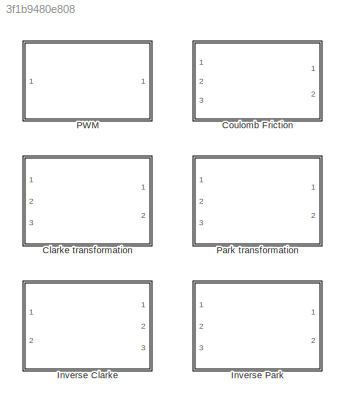
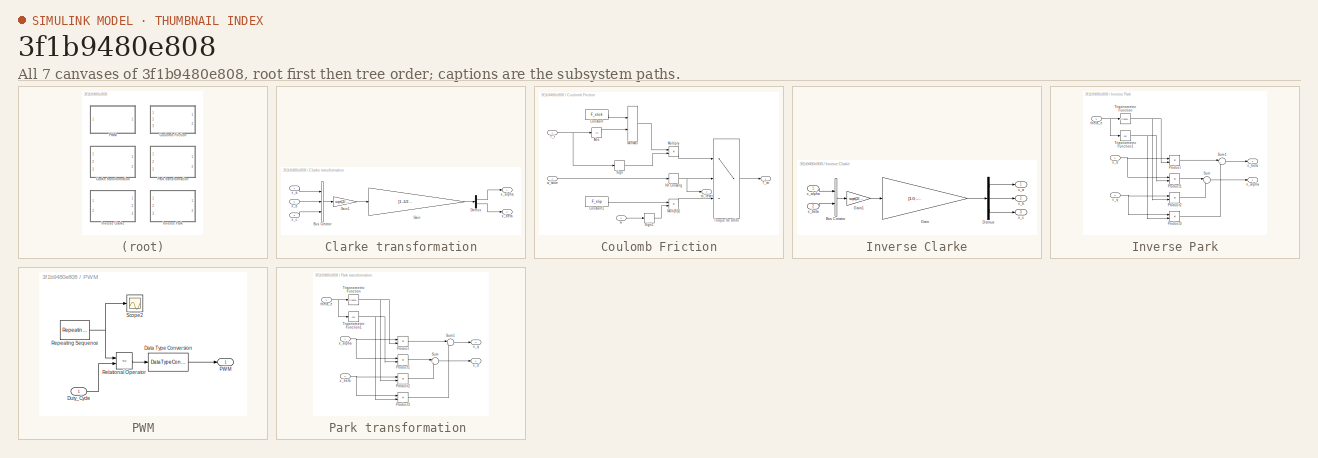
[diagram: thumbnail index - all 7 canvases of the model, root first then tree order]
MODEL slx_3f1b9480e808
KIND library
BLOCK [SubSystem] Clarke transformation
  FunctionWithSeparateData = off
  MaskHideContents = off
  MinAlgLoopOccurrences = off
  Opaque = off
  Ports = [3, 2]
  PropExecContextOutsideSubsystem = off
  RTWSystemCode = Auto
  RequestExecContextInheritance = off
BLOCK [BusCreator] Clarke transformation/Bus Creator
  DisplayOption = bar
  Inputs = 3
  Ports = [3, 1]
BLOCK [Demux] Clarke transformation/Demux
  DisplayOption = bar
  Outputs = 2
  Ports = [1, 2]
BLOCK [Gain] Clarke transformation/Gain
  Gain = [1 -1/2 -1/2 ; 0 sqrt(3)/2 -sqrt(3)/2]
  Multiplication = Matrix(K*u)
  OutDataTypeStr = Inherit: Inherit via internal rule
  ParamDataTypeStr = Inherit: Inherit via internal rule
  SaturateOnIntegerOverflow = off
BLOCK [Gain] Clarke transformation/Gain1
  Gain = sqrt(2/3)
  OutDataTypeStr = Inherit: Inherit via internal rule
  ParamDataTypeStr = Inherit: Inherit via internal rule
  SaturateOnIntegerOverflow = off
BLOCK [Inport] Clarke transformation/x_a
  IconDisplay = Port number
BLOCK [Outport] Clarke transformation/x_alpha
  IconDisplay = Port number
BLOCK [Inport] Clarke transformation/x_b
  IconDisplay = Port number
  Port = 2
BLOCK [Outport] Clarke transformation/x_beta
  IconDisplay = Port number
  Port = 2
BLOCK [Inport] Clarke transformation/x_c
  IconDisplay = Port number
  Port = 3
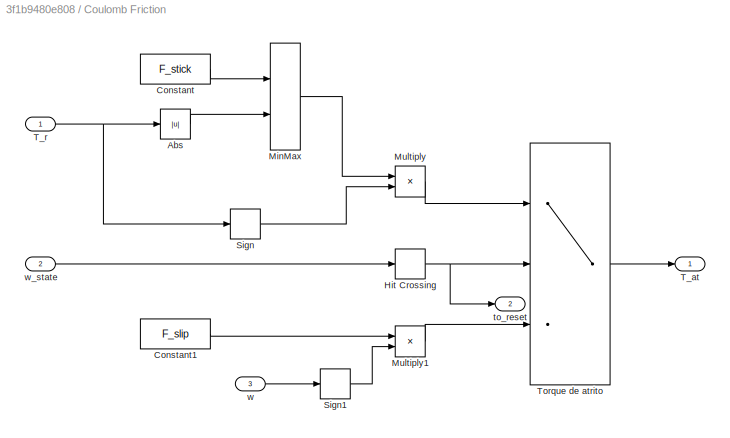
BLOCK [SubSystem] Coulomb Friction
  FunctionWithSeparateData = off
  MaskHideContents = off
  MinAlgLoopOccurrences = off
  Opaque = off
  Ports = [3, 2]
  PropExecContextOutsideSubsystem = off
  RTWSystemCode = Auto
  RequestExecContextInheritance = off
  StartFcn = if(strcmp('Fixed-step',get_param(bdroot,'SolverType')))                                                    \nerror('This block does not support the use of a fixed-step solver. Please change to a variable-step one.');\nend
BLOCK [Abs] Coulomb Friction/Abs
  SaturateOnIntegerOverflow = off
BLOCK [Constant] Coulomb Friction/Constant
  Value = F_stick
BLOCK [Constant] Coulomb Friction/Constant1
  Value = F_slip
BLOCK [HitCross] Coulomb Friction/Hit  Crossing
  Ports = [1, 1]
BLOCK [MinMax] Coulomb Friction/MinMax
  InputSameDT = off
  Inputs = 2
  Ports = [2, 1]
  SaturateOnIntegerOverflow = off
BLOCK [Product] Coulomb Friction/Multiply
  InputSameDT = off
  Inputs = **
  OutDataTypeStr = Inherit: Inherit via internal rule
  Ports = [2, 1]
  RndMeth = Floor
  SaturateOnIntegerOverflow = off
BLOCK [Product] Coulomb Friction/Multiply1
  InputSameDT = off
  Inputs = **
  OutDataTypeStr = Inherit: Inherit via internal rule
  Ports = [2, 1]
  RndMeth = Floor
  SaturateOnIntegerOverflow = off
BLOCK [Signum] Coulomb Friction/Sign
BLOCK [Signum] Coulomb Friction/Sign1
BLOCK [Outport] Coulomb Friction/T_at
  IconDisplay = Port number
BLOCK [Inport] Coulomb Friction/T_r
  IconDisplay = Port number
BLOCK [Switch] Coulomb Friction/Torque de atrito
  Criteria = u2 > Threshold
  InputSameDT = off
  SaturateOnIntegerOverflow = off
BLOCK [Outport] Coulomb Friction/to_reset
  IconDisplay = Port number
  Port = 2
BLOCK [Inport] Coulomb Friction/w
  IconDisplay = Port number
  Port = 3
BLOCK [Inport] Coulomb Friction/w_state
  IconDisplay = Port number
  Port = 2
BLOCK [SubSystem] Inverse Clarke
  FunctionWithSeparateData = off
  MaskHideContents = off
  MinAlgLoopOccurrences = off
  Opaque = off
  Ports = [2, 3]
  PropExecContextOutsideSubsystem = off
  RTWSystemCode = Auto
  RequestExecContextInheritance = off
BLOCK [BusCreator] Inverse Clarke/Bus Creator
  DisplayOption = bar
  Inputs = 2
  Ports = [2, 1]
BLOCK [Demux] Inverse Clarke/Demux
  DisplayOption = bar
  Outputs = 3
  Ports = [1, 3]
BLOCK [Gain] Inverse Clarke/Gain
  Gain = [1 0; -1/2 sqrt(3)/2; -1/2 -sqrt(3)/2]
  Multiplication = Matrix(K*u)
  OutDataTypeStr = Inherit: Inherit via internal rule
  ParamDataTypeStr = Inherit: Inherit via internal rule
  SaturateOnIntegerOverflow = off
BLOCK [Gain] Inverse Clarke/Gain1
  Gain = sqrt(2/3)
  OutDataTypeStr = Inherit: Inherit via internal rule
  ParamDataTypeStr = Inherit: Inherit via internal rule
  SaturateOnIntegerOverflow = off
BLOCK [Outport] Inverse Clarke/x_a
  IconDisplay = Port number
BLOCK [Inport] Inverse Clarke/x_alpha
  IconDisplay = Port number
BLOCK [Outport] Inverse Clarke/x_b
  IconDisplay = Port number
  Port = 2
BLOCK [Inport] Inverse Clarke/x_beta
  IconDisplay = Port number
  Port = 2
BLOCK [Outport] Inverse Clarke/x_c
  IconDisplay = Port number
  Port = 3
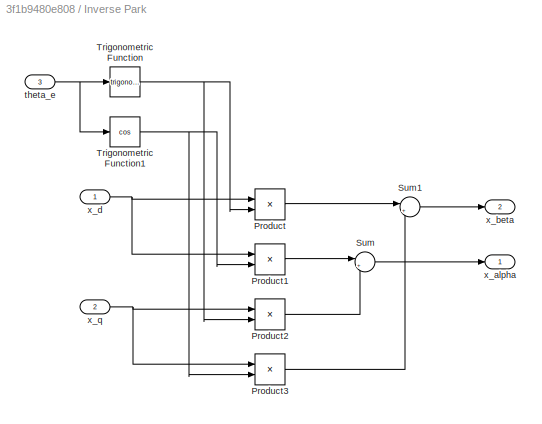
BLOCK [SubSystem] Inverse Park
  FunctionWithSeparateData = off
  MaskHideContents = off
  MinAlgLoopOccurrences = off
  Opaque = off
  Ports = [3, 2]
  PropExecContextOutsideSubsystem = off
  RTWSystemCode = Auto
  RequestExecContextInheritance = off
BLOCK [Product] Inverse Park/Product
  InputSameDT = off
  OutDataTypeStr = Inherit: Inherit via internal rule
  Ports = [2, 1]
  SaturateOnIntegerOverflow = off
BLOCK [Product] Inverse Park/Product1
  InputSameDT = off
  OutDataTypeStr = Inherit: Inherit via internal rule
  Ports = [2, 1]
  SaturateOnIntegerOverflow = off
BLOCK [Product] Inverse Park/Product2
  InputSameDT = off
  OutDataTypeStr = Inherit: Inherit via internal rule
  Ports = [2, 1]
  SaturateOnIntegerOverflow = off
BLOCK [Product] Inverse Park/Product3
  InputSameDT = off
  OutDataTypeStr = Inherit: Inherit via internal rule
  Ports = [2, 1]
  SaturateOnIntegerOverflow = off
BLOCK [Sum] Inverse Park/Sum
  IconShape = round
  InputSameDT = off
  Inputs = |+-
  OutDataTypeStr = Inherit: Inherit via internal rule
  Ports = [2, 1]
  SaturateOnIntegerOverflow = off
BLOCK [Sum] Inverse Park/Sum1
  IconShape = round
  InputSameDT = off
  Inputs = |++
  OutDataTypeStr = Inherit: Inherit via internal rule
  Ports = [2, 1]
  SaturateOnIntegerOverflow = off
BLOCK [Trigonometry] Inverse Park/Trigonometric Function
  OutputSignalType = real
  Ports = [1, 1]
BLOCK [Trigonometry] Inverse Park/Trigonometric Function1
  Operator = cos
  OutputSignalType = real
  Ports = [1, 1]
BLOCK [Inport] Inverse Park/theta_e
  IconDisplay = Port number
  Port = 3
BLOCK [Outport] Inverse Park/x_alpha 
  IconDisplay = Port number
BLOCK [Outport] Inverse Park/x_beta
  IconDisplay = Port number
  Port = 2
BLOCK [Inport] Inverse Park/x_d
  IconDisplay = Port number
BLOCK [Inport] Inverse Park/x_q
  IconDisplay = Port number
  Port = 2
BLOCK [SubSystem] PWM
  FunctionWithSeparateData = off
  MaskHideContents = off
  MinAlgLoopOccurrences = off
  Opaque = off
  Ports = [1, 1]
  PropExecContextOutsideSubsystem = off
  RTWSystemCode = Auto
  RequestExecContextInheritance = off
  StartFcn = T_PWM = get_param(gcb,'f');                                             \nT_PWM = 1./str2double(T_PWM);                                           \nT_solver = get_param(bdroot,'FixedStep');                               \nT_solver = str2double(T_solver);                                        \nif T_solver > 0.5*T_PWM                                                 \n   %error('Solver step size must be...<+41ch>
BLOCK [DataTypeConversion] PWM/Data Type Conversion
  RndMeth = Floor
  SaturateOnIntegerOverflow = off
BLOCK [Inport] PWM/Duty_Cycle
  IconDisplay = Port number
BLOCK [Outport] PWM/PWM
  IconDisplay = Port number
BLOCK [RelationalOperator] PWM/Relational Operator
  InputSameDT = off
  Operator = <=
  OutDataTypeStr = boolean
  Ports = [2, 1]
BLOCK [Reference] PWM/Repeating Sequence  REF=simulink/Sources/Repeating
Sequence
  Ports = [0, 1]
  SourceBlock = simulink/Sources/Repeating\nSequence
  SourceType = Repeating table
  rep_seq_t = [0 1/f]
  rep_seq_y = [0 1]
BLOCK [Scope] PWM/Scope2
  DataFormat = StructureWithTime
  Floating = off
  LimitDataPoints = off
  NumInputPorts = 1
  Ports = [1]
  SampleTime = 0
  ShowLegends = off
  YMax = 0.301
  YMin = 0.294
  ZoomMode = xonly
BLOCK [SubSystem] Park transformation 
  FunctionWithSeparateData = off
  MaskHideContents = off
  MinAlgLoopOccurrences = off
  Opaque = off
  Ports = [3, 2]
  PropExecContextOutsideSubsystem = off
  RTWSystemCode = Auto
  RequestExecContextInheritance = off
BLOCK [Product] Park transformation /Product
  InputSameDT = off
  OutDataTypeStr = Inherit: Inherit via internal rule
  Ports = [2, 1]
  SaturateOnIntegerOverflow = off
BLOCK [Product] Park transformation /Product1
  InputSameDT = off
  OutDataTypeStr = Inherit: Inherit via internal rule
  Ports = [2, 1]
  SaturateOnIntegerOverflow = off
BLOCK [Product] Park transformation /Product2
  InputSameDT = off
  OutDataTypeStr = Inherit: Inherit via internal rule
  Ports = [2, 1]
  SaturateOnIntegerOverflow = off
BLOCK [Product] Park transformation /Product3
  InputSameDT = off
  OutDataTypeStr = Inherit: Inherit via internal rule
  Ports = [2, 1]
  SaturateOnIntegerOverflow = off
BLOCK [Sum] Park transformation /Sum
  IconShape = round
  InputSameDT = off
  Inputs = |++
  OutDataTypeStr = Inherit: Inherit via internal rule
  Ports = [2, 1]
  SaturateOnIntegerOverflow = off
BLOCK [Sum] Park transformation /Sum1
  IconShape = round
  InputSameDT = off
  Inputs = |-+
  OutDataTypeStr = Inherit: Inherit via internal rule
  Ports = [2, 1]
  SaturateOnIntegerOverflow = off
BLOCK [Trigonometry] Park transformation /Trigonometric Function
  OutputSignalType = real
  Ports = [1, 1]
BLOCK [Trigonometry] Park transformation /Trigonometric Function1
  Operator = cos
  OutputSignalType = real
  Ports = [1, 1]
BLOCK [Inport] Park transformation /theta_e
  IconDisplay = Port number
  Port = 3
BLOCK [Inport] Park transformation /x_alpha
  IconDisplay = Port number
BLOCK [Inport] Park transformation /x_beta
  IconDisplay = Port number
  Port = 2
BLOCK [Outport] Park transformation /x_d
  IconDisplay = Port number
BLOCK [Outport] Park transformation /x_q
  IconDisplay = Port number
  Port = 2
LINE Clarke transformation/Bus Creator:1 -> Clarke transformation/Gain1:1
LINE Clarke transformation/Demux:1 -> Clarke transformation/x_alpha:1
LINE Clarke transformation/Demux:2 -> Clarke transformation/x_beta:1
LINE Clarke transformation/Gain1:1 -> Clarke transformation/Gain:1
LINE Clarke transformation/Gain:1 -> Clarke transformation/Demux:1
LINE Clarke transformation/x_a:1 -> Clarke transformation/Bus Creator:1
LINE Clarke transformation/x_b:1 -> Clarke transformation/Bus Creator:2
LINE Clarke transformation/x_c:1 -> Clarke transformation/Bus Creator:3
LINE Coulomb Friction/Abs:1 -> Coulomb Friction/MinMax:2
LINE Coulomb Friction/Constant1:1 -> Coulomb Friction/Multiply1:1
LINE Coulomb Friction/Constant:1 -> Coulomb Friction/MinMax:1
NET Coulomb Friction/Hit  Crossing:1 -> Coulomb Friction/Torque de atrito:2, Coulomb Friction/to_reset:1
LINE Coulomb Friction/MinMax:1 -> Coulomb Friction/Multiply:1
LINE Coulomb Friction/Multiply1:1 -> Coulomb Friction/Torque de atrito:3
LINE Coulomb Friction/Multiply:1 -> Coulomb Friction/Torque de atrito:1
LINE Coulomb Friction/Sign1:1 -> Coulomb Friction/Multiply1:2
LINE Coulomb Friction/Sign:1 -> Coulomb Friction/Multiply:2
NET Coulomb Friction/T_r:1 -> Coulomb Friction/Abs:1, Coulomb Friction/Sign:1
LINE Coulomb Friction/Torque de atrito:1 -> Coulomb Friction/T_at:1
LINE Coulomb Friction/w:1 -> Coulomb Friction/Sign1:1
LINE Coulomb Friction/w_state:1 -> Coulomb Friction/Hit  Crossing:1
LINE Inverse Clarke/Bus Creator:1 -> Inverse Clarke/Gain1:1
LINE Inverse Clarke/Demux:1 -> Inverse Clarke/x_a:1
LINE Inverse Clarke/Demux:2 -> Inverse Clarke/x_b:1
LINE Inverse Clarke/Demux:3 -> Inverse Clarke/x_c:1
LINE Inverse Clarke/Gain1:1 -> Inverse Clarke/Gain:1
LINE Inverse Clarke/Gain:1 -> Inverse Clarke/Demux:1
LINE Inverse Clarke/x_alpha:1 -> Inverse Clarke/Bus Creator:1
LINE Inverse Clarke/x_beta:1 -> Inverse Clarke/Bus Creator:2
LINE Inverse Park/Product1:1 -> Inverse Park/Sum:1
LINE Inverse Park/Product2:1 -> Inverse Park/Sum:2
LINE Inverse Park/Product3:1 -> Inverse Park/Sum1:2
LINE Inverse Park/Product:1 -> Inverse Park/Sum1:1
LINE Inverse Park/Sum1:1 -> Inverse Park/x_beta:1
LINE Inverse Park/Sum:1 -> Inverse Park/x_alpha :1
NET Inverse Park/Trigonometric Function1:1 -> Inverse Park/Product1:2, Inverse Park/Product3:2
NET Inverse Park/Trigonometric Function:1 -> Inverse Park/Product2:2, Inverse Park/Product:2
NET Inverse Park/theta_e:1 -> Inverse Park/Trigonometric Function1:1, Inverse Park/Trigonometric Function:1
NET Inverse Park/x_d:1 -> Inverse Park/Product1:1, Inverse Park/Product:1
NET Inverse Park/x_q:1 -> Inverse Park/Product2:1, Inverse Park/Product3:1
LINE PWM/Data Type Conversion:1 -> PWM/PWM:1
LINE PWM/Duty_Cycle:1 -> PWM/Relational Operator:2
LINE PWM/Relational Operator:1 -> PWM/Data Type Conversion:1
NET PWM/Repeating Sequence:1 -> PWM/Relational Operator:1, PWM/Scope2:1
LINE Park transformation /Product1:1 -> Park transformation /Sum:1
LINE Park transformation /Product2:1 -> Park transformation /Sum:2
LINE Park transformation /Product3:1 -> Park transformation /Sum1:2
LINE Park transformation /Product:1 -> Park transformation /Sum1:1
LINE Park transformation /Sum1:1 -> Park transformation /x_q:1
LINE Park transformation /Sum:1 -> Park transformation /x_d:1
NET Park transformation /Trigonometric Function1:1 -> Park transformation /Product1:2, Park transformation /Product3:2
NET Park transformation /Trigonometric Function:1 -> Park transformation /Product2:2, Park transformation /Product:2
NET Park transformation /theta_e:1 -> Park transformation /Trigonometric Function1:1, Park transformation /Trigonometric Function:1
NET Park transformation /x_alpha:1 -> Park transformation /Product1:1, Park transformation /Product:1
NET Park transformation /x_beta:1 -> Park transformation /Product2:1, Park transformation /Product3:1
note: NET lines group one-source signal fan-out (src -> all destinations, sorted); 1:1 wires keep LINE
